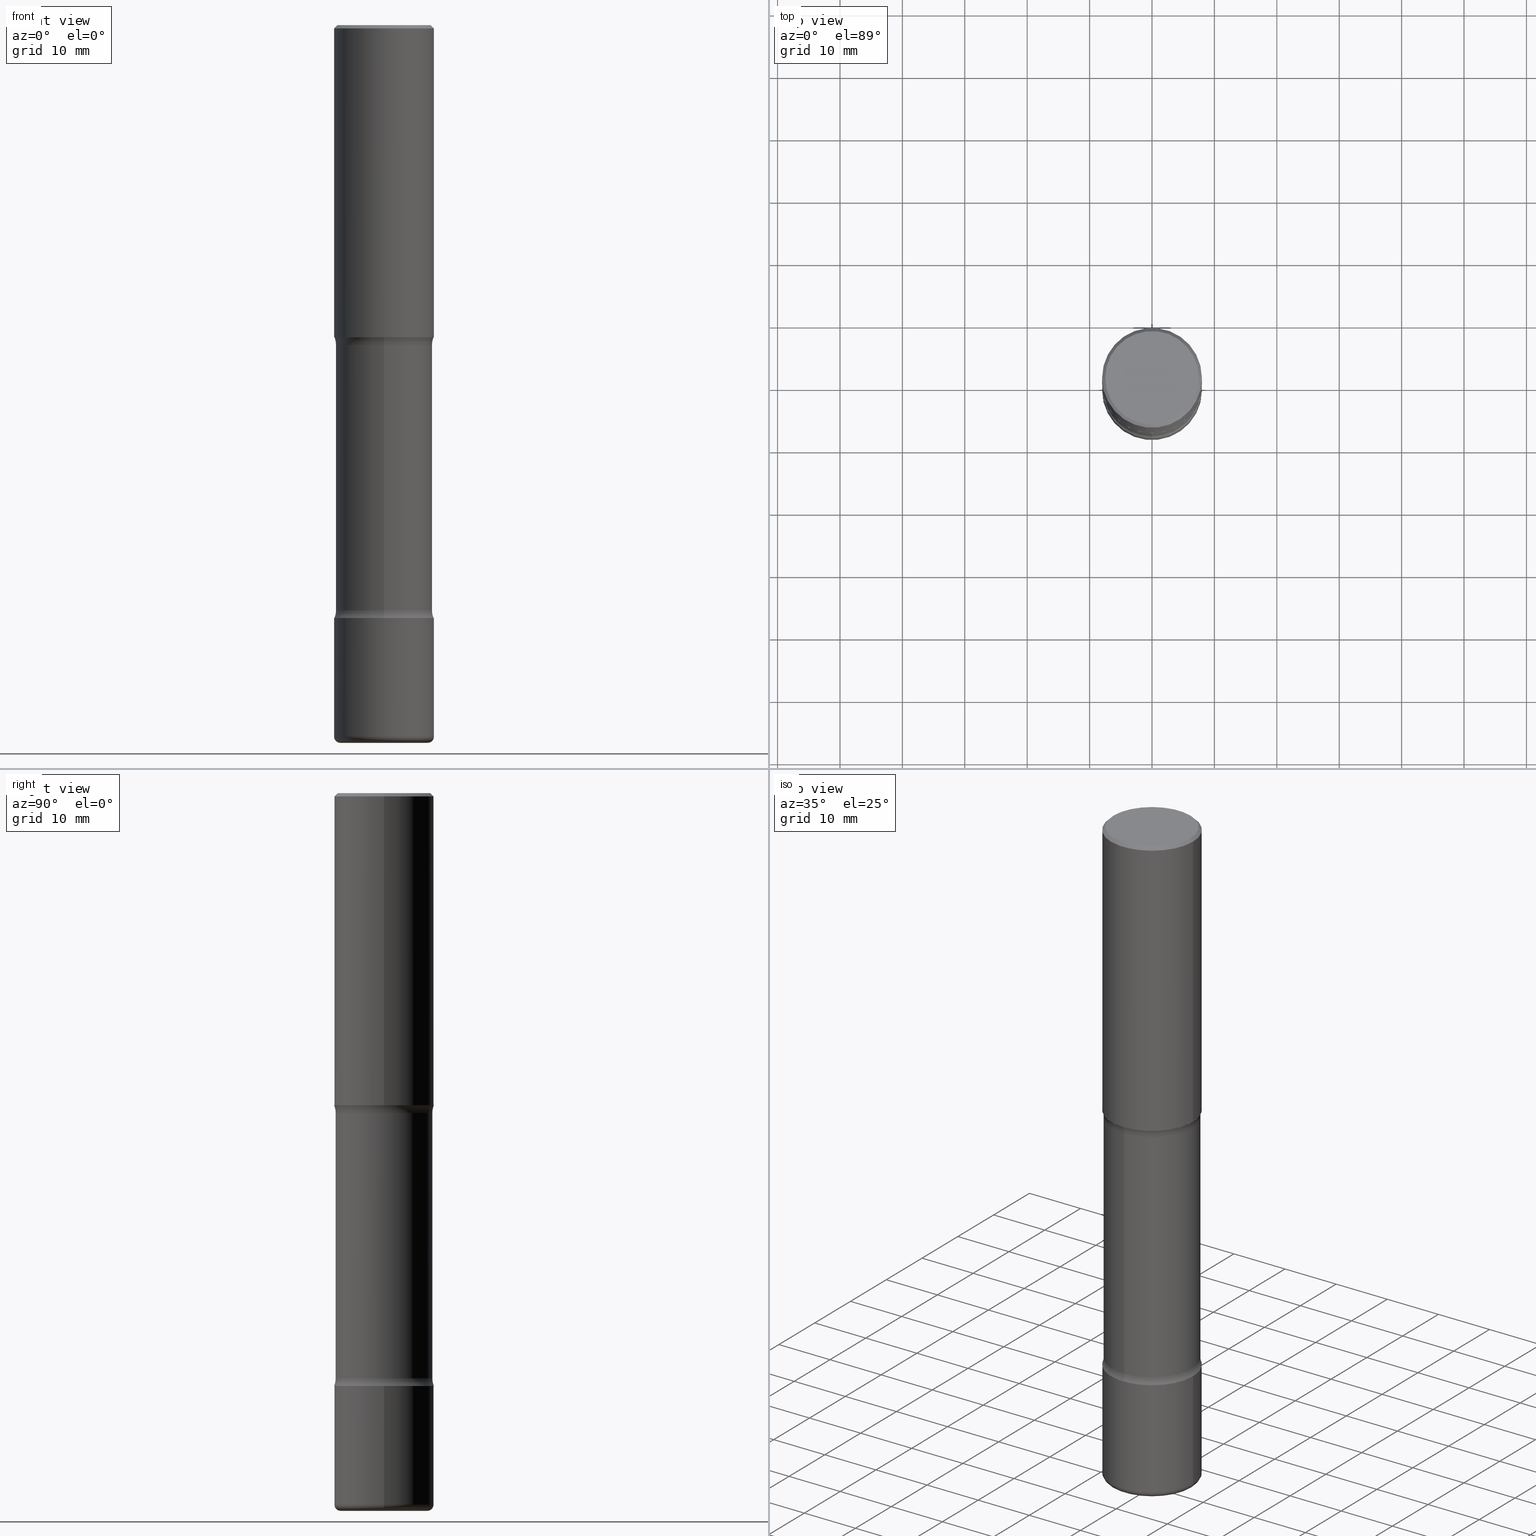
[diagram: canonical four-view strip — front | top / right | iso, engineering-drawing reading convention]
A machine part, canonical four-view strip (front | top / right | iso — engineering-drawing reading convention). The complete STEP part file that produces these views, byte-faithful:
ISO-10303-21;
HEADER;
FILE_DESCRIPTION (( 'STEP AP203' ),
    '1' );
FILE_NAME ('46932.STEP',
    '2024-03-02T05:57:35',
    ( '' ),
    ( '' ),
    'SwSTEP 2.0',
    'SolidWorks 2023',
    '' );
FILE_SCHEMA (( 'CONFIG_CONTROL_DESIGN' ));
ENDSEC;

DATA;
#1 = CARTESIAN_POINT ( 'NONE',  ( -0.2949499999999998789, 2.094539655171994924E-15, 1.280553747028672311E-17 ) ) ;
#2 = CARTESIAN_POINT ( 'NONE',  ( 4.698043529530127941E-29, -7.038901729675425288E-15, -1.968500000000000139 ) ) ;
#3 = VECTOR ( 'NONE', #293, 39.37007874015748143 ) ;
#4 = EDGE_CURVE ( 'NONE', #514, #277, #250, .T. ) ;
#5 = TOROIDAL_SURFACE ( 'NONE', #318, 0.4299999999999999378, 0.1249999999999999861 ) ;
#6 = APPROVAL_ROLE ( '' ) ;
#7 = DIRECTION ( 'NONE',  ( -2.445468806185136877E-29, 3.491481338843145188E-15, 1.000000000000000000 ) ) ;
#8 = APPROVAL ( #443, 'UNSPECIFIED' ) ;
#9 = DIRECTION ( 'NONE',  ( 6.982962677686265922E-15, 1.000000000000000000, -3.397830769241806549E-15 ) ) ;
#10 = CALENDAR_DATE ( 2024, 2, 3 ) ;
#11 = DIRECTION ( 'NONE',  ( -0.7071067811865459074, 2.468850131082240100E-15, -0.7071067811865491270 ) ) ;
#12 = CARTESIAN_POINT ( 'NONE',  ( -2.126582866859139470E-15, -0.3050000000000128719, -3.691327743043725906 ) ) ;
#13 = CIRCLE ( 'NONE', #97, 0.1249999999999999584 ) ;
#14 = VERTEX_POINT ( 'NONE', #338 ) ;
#15 = DATE_AND_TIME ( #446, #252 ) ;
#16 = DIRECTION ( 'NONE',  ( -1.000000000000000000, 6.982962677686265922E-15, 0.000000000000000000 ) ) ;
#17 = ORIENTED_EDGE ( 'NONE', *, *, #515, .F. ) ;
#18 = CARTESIAN_POINT ( 'NONE',  ( 9.146542428893648262E-29, -1.305883850354113437E-14, -3.740200000000000191 ) ) ;
#19 = EDGE_LOOP ( 'NONE', ( #226, #65, #512, #508 ) ) ;
#20 = DIRECTION ( 'NONE',  ( 2.438088387897960049E-29, -3.491481338843145188E-15, -1.000000000000000000 ) ) ;
#21 = EDGE_CURVE ( 'NONE', #14, #241, #377, .T. ) ;
#22 = VERTEX_POINT ( 'NONE', #235 ) ;
#23 = AXIS2_PLACEMENT_3D ( 'NONE', #36, #115, #40 ) ;
#24 = LOCAL_TIME ( 0, 57, 35.00000000000000000, #92 ) ;
#25 = DIRECTION ( 'NONE',  ( 6.982962677686264344E-15, 1.000000000000000000, -3.469564049740290403E-15 ) ) ;
#26 = ORIENTED_EDGE ( 'NONE', *, *, #263, .F. ) ;
#27 = FACE_OUTER_BOUND ( 'NONE', #232, .T. ) ;
#28 = PRODUCT_DEFINITION_SHAPE ( 'NONE', 'NONE',  #90 ) ;
#29 = ORIENTED_EDGE ( 'NONE', *, *, #234, .F. ) ;
#30 = ADVANCED_FACE ( 'NONE', ( #245 ), #106, .T. ) ;
#31 = ORIENTED_EDGE ( 'NONE', *, *, #481, .T. ) ;
#32 = AXIS2_PLACEMENT_3D ( 'NONE', #187, #198, #189 ) ;
#33 = PLANE ( 'NONE',  #96 ) ;
#34 = CC_DESIGN_APPROVAL ( #8, ( #90 ) ) ;
#35 = ORIENTED_EDGE ( 'NONE', *, *, #343, .T. ) ;
#36 = CARTESIAN_POINT ( 'NONE',  ( 1.097575309592013175E-28, -1.567046654499580783E-14, -4.488200000000000855 ) ) ;
#37 = VERTEX_POINT ( 'NONE', #332 ) ;
#38 = DIRECTION ( 'NONE',  ( 6.982962677686264344E-15, 1.000000000000000000, -3.469564049740290403E-15 ) ) ;
#39 = ORIENTED_EDGE ( 'NONE', *, *, #481, .F. ) ;
#40 = DIRECTION ( 'NONE',  ( 1.000000000000000000, -6.982962677686265922E-15, 0.000000000000000000 ) ) ;
#41 = AXIS2_PLACEMENT_3D ( 'NONE', #309, #453, #222 ) ;
#42 = DIRECTION ( 'NONE',  ( 1.000000000000000000, -6.982962677686265133E-15, 4.883557194083112340E-29 ) ) ;
#43 = APPROVAL_PERSON_ORGANIZATION ( #213, #204, #403 ) ;
#44 = CARTESIAN_POINT ( 'NONE',  ( 0.3149499999999998967, -2.230543471175006266E-15, -0.02000000000000006981 ) ) ;
#45 = PERSON_AND_ORGANIZATION ( #285, #300 ) ;
#46 = CARTESIAN_POINT ( 'NONE',  ( 2.199284095337382168E-15, 0.3149499999999871291, -3.740200000000001079 ) ) ;
#47 = DIRECTION ( 'NONE',  ( 1.000000000000000000, -6.982962677686266711E-15, 4.876176775795936353E-29 ) ) ;
#48 = PERSON_AND_ORGANIZATION ( #285, #300 ) ;
#49 = CYLINDRICAL_SURFACE ( 'NONE', #67, 0.3049999999999999378 ) ;
#50 = AXIS2_PLACEMENT_3D ( 'NONE', #370, #104, #547 ) ;
#51 = CARTESIAN_POINT ( 'NONE',  ( -0.2755500000000001837, -1.371256603660884731E-14, -4.488199999999999967 ) ) ;
#52 = PERSON_AND_ORGANIZATION_ROLE ( 'classification_officer' ) ;
#53 = CARTESIAN_POINT ( 'NONE',  ( 0.000000000000000000, 0.000000000000000000, 0.000000000000000000 ) ) ;
#54 = EDGE_CURVE ( 'NONE', #181, #543, #111, .T. ) ;
#55 = PERSON_AND_ORGANIZATION ( #285, #300 ) ;
#56 = DIRECTION ( 'NONE',  ( 0.7071067811865459074, -7.319954787623249734E-15, -0.7071067811865491270 ) ) ;
#57 = ORIENTED_EDGE ( 'NONE', *, *, #441, .T. ) ;
#58 = APPROVAL_STATUS ( 'not_yet_approved' ) ;
#59 = FACE_OUTER_BOUND ( 'NONE', #330, .T. ) ;
#60 = AXIS2_PLACEMENT_3D ( 'NONE', #85, #483, #9 ) ;
#61 = ORIENTED_EDGE ( 'NONE', *, *, #4, .F. ) ;
#62 = CARTESIAN_POINT ( 'NONE',  ( -0.3149499999999998967, 2.129454468560425784E-15, -0.02000000000000006981 ) ) ;
#63 = EDGE_LOOP ( 'NONE', ( #228, #557 ) ) ;
#64 = CARTESIAN_POINT ( 'NONE',  ( 4.813905344975441835E-29, -6.872981015512731707E-15, -1.968500000000000139 ) ) ;
#65 = ORIENTED_EDGE ( 'NONE', *, *, #525, .T. ) ;
#66 = PLANE ( 'NONE',  #251 ) ;
#67 = AXIS2_PLACEMENT_3D ( 'NONE', #302, #480, #254 ) ;
#68 = AXIS2_PLACEMENT_3D ( 'NONE', #53, #144, #150 ) ;
#69 = ORIENTED_EDGE ( 'NONE', *, *, #554, .T. ) ;
#70 = AXIS2_PLACEMENT_3D ( 'NONE', #2, #430, #342 ) ;
#71 = DIRECTION ( 'NONE',  ( 6.982962677686265922E-15, 1.000000000000000000, -3.397830769241806549E-15 ) ) ;
#72 = ORIENTED_EDGE ( 'NONE', *, *, #335, .T. ) ;
#73 = FACE_OUTER_BOUND ( 'NONE', #63, .T. ) ;
#74 = ORIENTED_EDGE ( 'NONE', *, *, #148, .F. ) ;
#75 = DIRECTION ( 'NONE',  ( -6.982962677686266711E-15, -1.000000000000000000, 3.491481338843145583E-15 ) ) ;
#76 = ORIENTED_EDGE ( 'NONE', *, *, #247, .T. ) ;
#77 = CIRCLE ( 'NONE', #506, 0.2949499999999998789 ) ;
#78 = EDGE_CURVE ( 'NONE', #456, #191, #401, .T. ) ;
#79 = ORIENTED_EDGE ( 'NONE', *, *, #84, .F. ) ;
#80 = VERTEX_POINT ( 'NONE', #44 ) ;
#81 = CARTESIAN_POINT ( 'NONE',  ( 9.146542428893648262E-29, -1.305883850354113437E-14, -3.740200000000000191 ) ) ;
#82 = PLANE ( 'NONE',  #114 ) ;
#83 = CIRCLE ( 'NONE', #376, 0.03939999999999975466 ) ;
#84 = EDGE_CURVE ( 'NONE', #514, #191, #520, .T. ) ;
#85 = CARTESIAN_POINT ( 'NONE',  ( 9.027026849019217051E-29, -1.288820193039115935E-14, -3.691327743043726795 ) ) ;
#86 = PERSON_AND_ORGANIZATION ( #285, #300 ) ;
#87 = CARTESIAN_POINT ( 'NONE',  ( 4.890937612370289799E-31, -6.982962677686315028E-17, -0.02000000000000006981 ) ) ;
#88 = CLOSED_SHELL ( 'NONE', ( #160, #311, #207, #477, #475, #534 ) ) ;
#89 = VECTOR ( 'NONE', #11, 39.37007874015748143 ) ;
#90 = PRODUCT_DEFINITION ( 'UNKNOWN', '', #498, #419 ) ;
#91 = FACE_OUTER_BOUND ( 'NONE', #188, .T. ) ;
#92 = COORDINATED_UNIVERSAL_TIME_OFFSET ( 5, 0, .BEHIND. ) ;
#93 = DIRECTION ( 'NONE',  ( -1.000000000000000000, 6.982962677686265922E-15, -4.876176775795935793E-29 ) ) ;
#94 = CALENDAR_DATE ( 2024, 2, 3 ) ;
#95 = DIRECTION ( 'NONE',  ( -2.445468806185136597E-29, 3.491481338843145583E-15, 1.000000000000000000 ) ) ;
#96 = AXIS2_PLACEMENT_3D ( 'NONE', #142, #556, #373 ) ;
#97 = AXIS2_PLACEMENT_3D ( 'NONE', #523, #516, #336 ) ;
#98 = ORIENTED_EDGE ( 'NONE', *, *, #263, .T. ) ;
#99 = CARTESIAN_POINT ( 'NONE',  ( 4.698043529530127941E-29, -7.038901729675425288E-15, -1.968500000000000139 ) ) ;
#100 = ADVANCED_FACE ( 'NONE', ( #397 ), #154, .F. ) ;
#101 = EDGE_LOOP ( 'NONE', ( #313, #417 ) ) ;
#102 = CARTESIAN_POINT ( 'NONE',  ( -2.092451889320205392E-15, -0.3050000000000157030, -4.527599999999998737 ) ) ;
#103 = ORIENTED_EDGE ( 'NONE', *, *, #492, .T. ) ;
#104 = DIRECTION ( 'NONE',  ( 2.510864649412157880E-29, -3.397830769241806549E-15, -1.000000000000000000 ) ) ;
#105 = AXIS2_PLACEMENT_3D ( 'NONE', #170, #485, #93 ) ;
#106 = CYLINDRICAL_SURFACE ( 'NONE', #268, 0.3049999999999999378 ) ;
#107 = CC_DESIGN_APPROVAL ( #204, ( #394 ) ) ;
#108 = DIRECTION ( 'NONE',  ( 2.510864649412157600E-29, -3.397830769241806549E-15, -1.000000000000000000 ) ) ;
#109 = ORIENTED_EDGE ( 'NONE', *, *, #379, .F. ) ;
#110 = DIRECTION ( 'NONE',  ( -2.445468806185136877E-29, 3.491481338843145188E-15, 1.000000000000000000 ) ) ;
#111 = LINE ( 'NONE', #380, #412 ) ;
#112 = PLANE ( 'NONE',  #393 ) ;
#113 = DIRECTION ( 'NONE',  ( 2.510864649412157600E-29, -3.397830769241806549E-15, -1.000000000000000000 ) ) ;
#114 = AXIS2_PLACEMENT_3D ( 'NONE', #81, #249, #253 ) ;
#115 = DIRECTION ( 'NONE',  ( -2.445468806185136597E-29, 3.491481338843145583E-15, 1.000000000000000000 ) ) ;
#116 = ORIENTED_EDGE ( 'NONE', *, *, #424, .T. ) ;
#117 =( LENGTH_UNIT ( ) NAMED_UNIT ( * ) SI_UNIT ( $, .METRE. ) );
#118 = DIRECTION ( 'NONE',  ( 1.000000000000000000, -6.982962677686265922E-15, 0.000000000000000000 ) ) ;
#119 = DIRECTION ( 'NONE',  ( 1.000000000000000000, -6.982962677686269866E-15, 0.000000000000000000 ) ) ;
#120 = EDGE_CURVE ( 'NONE', #290, #543, #239, .T. ) ;
#121 = CARTESIAN_POINT ( 'NONE',  ( -0.2755500000000001282, -1.364137130003931840E-14, -4.527599999999999625 ) ) ;
#122 = AXIS2_PLACEMENT_3D ( 'NONE', #527, #444, #354 ) ;
#123 = CALENDAR_DATE ( 2024, 2, 3 ) ;
#124 = CARTESIAN_POINT ( 'NONE',  ( -2.160713844398098792E-15, -0.3149500000000073907, -1.968499999999999028 ) ) ;
#125 = TOROIDAL_SURFACE ( 'NONE', #425, 0.2755500000000001837, 0.03939999999999977548 ) ;
#126 = DIRECTION ( 'NONE',  ( 2.445468806185136597E-29, -3.491481338843145583E-15, -1.000000000000000000 ) ) ;
#127 = AXIS2_PLACEMENT_3D ( 'NONE', #99, #357, #348 ) ;
#128 = ORIENTED_EDGE ( 'NONE', *, *, #21, .T. ) ;
#129 = CARTESIAN_POINT ( 'NONE',  ( 0.000000000000000000, 0.000000000000000000, 0.000000000000000000 ) ) ;
#130 = ORIENTED_EDGE ( 'NONE', *, *, #234, .T. ) ;
#131 = SECURITY_CLASSIFICATION_LEVEL ( 'unclassified' ) ;
#132 = LINE ( 'NONE', #530, #89 ) ;
#133 = ADVANCED_FACE ( 'NONE', ( #470 ), #541, .T. ) ;
#134 = ORIENTED_EDGE ( 'NONE', *, *, #84, .T. ) ;
#135 = LINE ( 'NONE', #398, #270 ) ;
#136 = CONICAL_SURFACE ( 'NONE', #195, 0.3149499999999998967, 0.7853981633974460586 ) ;
#137 = ORIENTED_EDGE ( 'NONE', *, *, #492, .F. ) ;
#138 = CARTESIAN_POINT ( 'NONE',  ( 9.146542428893648262E-29, -1.305883850354113437E-14, -3.740200000000000191 ) ) ;
#139 = MANIFOLD_SOLID_BREP ( 'Body-Move/Copy2[4]', #351 ) ;
#140 = ORIENTED_EDGE ( 'NONE', *, *, #436, .F. ) ;
#141 = ADVANCED_FACE ( 'NONE', ( #206 ), #49, .T. ) ;
#142 = CARTESIAN_POINT ( 'NONE',  ( 4.813905344975441835E-29, -6.872981015512731707E-15, -1.968500000000000139 ) ) ;
#143 = VERTEX_POINT ( 'NONE', #296 ) ;
#144 = DIRECTION ( 'NONE',  ( -2.445468806185136597E-29, 3.491481338843145583E-15, 1.000000000000000000 ) ) ;
#145 = AXIS2_PLACEMENT_3D ( 'NONE', #540, #396, #218 ) ;
#146 = ORIENTED_EDGE ( 'NONE', *, *, #202, .F. ) ;
#147 = FACE_OUTER_BOUND ( 'NONE', #281, .T. ) ;
#148 = EDGE_CURVE ( 'NONE', #191, #472, #304, .T. ) ;
#149 = DIRECTION ( 'NONE',  ( 2.510864649412157880E-29, -3.397830769241806549E-15, -1.000000000000000000 ) ) ;
#150 = DIRECTION ( 'NONE',  ( 1.000000000000000000, -6.982962677686265922E-15, 4.876176775795935232E-29 ) ) ;
#151 = ADVANCED_FACE ( 'NONE', ( #474 ), #125, .T. ) ;
#152 = EDGE_LOOP ( 'NONE', ( #35, #496 ) ) ;
#153 = CYLINDRICAL_SURFACE ( 'NONE', #271, 0.3149500000000000077 ) ;
#154 = TOROIDAL_SURFACE ( 'NONE', #60, 0.4300000000000000488, 0.1249999999999999861 ) ;
#155 = DIRECTION ( 'NONE',  ( -2.445468806185136597E-29, 3.491481338843145583E-15, 1.000000000000000000 ) ) ;
#156 = AXIS2_PLACEMENT_3D ( 'NONE', #266, #490, #216 ) ;
#157 = CIRCLE ( 'NONE', #366, 0.3149500000000002298 ) ;
#158 =( NAMED_UNIT ( * ) SI_UNIT ( $, .STERADIAN. ) SOLID_ANGLE_UNIT ( ) );
#159 = DIRECTION ( 'NONE',  ( 1.000000000000000000, 0.000000000000000000, 0.000000000000000000 ) ) ;
#160 = ADVANCED_FACE ( 'NONE', ( #298 ), #256, .T. ) ;
#161 = DIRECTION ( 'NONE',  ( -1.000000000000000000, 6.982962677686265922E-15, -4.876176775795935793E-29 ) ) ;
#162 = CARTESIAN_POINT ( 'NONE',  ( 9.146542428893648262E-29, -1.305883850354113437E-14, -3.740200000000000191 ) ) ;
#163 = CC_DESIGN_PERSON_AND_ORGANIZATION_ASSIGNMENT ( #45, #211, ( #183 ) ) ;
#164 = CARTESIAN_POINT ( 'NONE',  ( 9.023830806565153848E-29, -1.289277884509281722E-14, -3.691327743043726795 ) ) ;
#165 = APPLICATION_PROTOCOL_DEFINITION ( 'international standard', 'config_control_design', 1994, #517 ) ;
#166 = CIRCLE ( 'NONE', #145, 0.2949499999999998789 ) ;
#167 = LOCAL_TIME ( 0, 57, 35.00000000000000000, #360 ) ;
#168 = EDGE_CURVE ( 'NONE', #22, #14, #240, .T. ) ;
#169 = COORDINATED_UNIVERSAL_TIME_OFFSET ( 5, 0, .BEHIND. ) ;
#170 = CARTESIAN_POINT ( 'NONE',  ( 9.146542428893648262E-29, -1.305883850354113437E-14, -3.740200000000000191 ) ) ;
#171 = DATE_TIME_ROLE ( 'creation_date' ) ;
#172 = CARTESIAN_POINT ( 'NONE',  ( 4.838038961945526264E-29, -7.180209988345923531E-15, -2.017372256956273979 ) ) ;
#173 = DATE_AND_TIME ( #94, #167 ) ;
#174 = FACE_OUTER_BOUND ( 'NONE', #407, .T. ) ;
#175 = CIRCLE ( 'NONE', #156, 0.3149499999999998967 ) ;
#176 = ORIENTED_EDGE ( 'NONE', *, *, #54, .T. ) ;
#177 = FACE_OUTER_BOUND ( 'NONE', #422, .T. ) ;
#178 = EDGE_CURVE ( 'NONE', #559, #241, #132, .T. ) ;
#179 = ORIENTED_EDGE ( 'NONE', *, *, #120, .F. ) ;
#180 = FACE_OUTER_BOUND ( 'NONE', #463, .T. ) ;
#181 = VERTEX_POINT ( 'NONE', #455 ) ;
#182 = DIRECTION ( 'NONE',  ( -1.000000000000000000, 6.982962677686265922E-15, -4.876176775795935793E-29 ) ) ;
#183 = PRODUCT ( '46932', '46932', '', ( #340 ) ) ;
#184 = CIRCLE ( 'NONE', #531, 0.3149500000000001743 ) ;
#185 = ADVANCED_FACE ( 'NONE', ( #269 ), #5, .F. ) ;
#186 = EDGE_LOOP ( 'NONE', ( #17, #69, #319, #272 ) ) ;
#187 = CARTESIAN_POINT ( 'NONE',  ( 1.107210456688382298E-28, -1.580803090974622389E-14, -4.527599999999999625 ) ) ;
#188 = EDGE_LOOP ( 'NONE', ( #371, #267, #381, #98 ) ) ;
#189 = DIRECTION ( 'NONE',  ( 1.000000000000000000, -6.982962677686273021E-15, 0.000000000000000000 ) ) ;
#190 = APPROVAL ( #482, 'UNSPECIFIED' ) ;
#191 = VERTEX_POINT ( 'NONE', #350 ) ;
#192 = CARTESIAN_POINT ( 'NONE',  ( 0.3149500000000002298, -1.525812259887842581E-14, -3.740200000000000191 ) ) ;
#193 = DIRECTION ( 'NONE',  ( 6.982962677686266711E-15, 1.000000000000000000, -3.582751467100674095E-15 ) ) ;
#194 = AXIS2_PLACEMENT_3D ( 'NONE', #164, #538, #193 ) ;
#195 = AXIS2_PLACEMENT_3D ( 'NONE', #87, #406, #16 ) ;
#196 = DIRECTION ( 'NONE',  ( 1.000000000000000000, -6.982962677686273021E-15, 0.000000000000000000 ) ) ;
#197 = CIRCLE ( 'NONE', #70, 0.3149500000000003408 ) ;
#198 = DIRECTION ( 'NONE',  ( -2.445468806185136597E-29, 3.491481338843145583E-15, 1.000000000000000000 ) ) ;
#199 = EDGE_CURVE ( 'NONE', #203, #287, #478, .T. ) ;
#200 = DIRECTION ( 'NONE',  ( 6.982962677686266711E-15, 1.000000000000000000, -3.582751467100674095E-15 ) ) ;
#201 = DIRECTION ( 'NONE',  ( -2.445468806185136597E-29, 3.491481338843145583E-15, 1.000000000000000000 ) ) ;
#202 = EDGE_CURVE ( 'NONE', #543, #290, #299, .T. ) ;
#203 = VERTEX_POINT ( 'NONE', #124 ) ;
#204 = APPROVAL ( #58, 'UNSPECIFIED' ) ;
#205 = FACE_OUTER_BOUND ( 'NONE', #427, .T. ) ;
#206 = FACE_OUTER_BOUND ( 'NONE', #411, .T. ) ;
#207 = ADVANCED_FACE ( 'NONE', ( #91 ), #452, .T. ) ;
#208 = AXIS2_PLACEMENT_3D ( 'NONE', #507, #410, #320 ) ;
#209 = CARTESIAN_POINT ( 'NONE',  ( -2.950014139041709158E-15, -0.4300000000000070988, -2.017372256956272647 ) ) ;
#210 = CARTESIAN_POINT ( 'NONE',  ( -0.3149500000000001743, 2.237854346276436774E-15, -1.549218606675783237E-29 ) ) ;
#211 = PERSON_AND_ORGANIZATION_ROLE ( 'design_owner' ) ;
#212 = LENGTH_MEASURE_WITH_UNIT ( LENGTH_MEASURE( 0.02539999999999999897 ), #117 );
#213 = PERSON_AND_ORGANIZATION ( #285, #300 ) ;
#214 = CIRCLE ( 'NONE', #544, 0.3149500000000002298 ) ;
#215 = APPROVAL_DATE_TIME ( #314, #204 ) ;
#216 = DIRECTION ( 'NONE',  ( 1.000000000000000000, -6.982962677686265922E-15, 0.000000000000000000 ) ) ;
#217 = APPROVAL_DATE_TIME ( #494, #190 ) ;
#218 = DIRECTION ( 'NONE',  ( 1.000000000000000000, -6.982962677686267499E-15, 4.876053491004736589E-29 ) ) ;
#219 = EDGE_CURVE ( 'NONE', #80, #241, #467, .T. ) ;
#220 = SHAPE_DEFINITION_REPRESENTATION ( #28, #361 ) ;
#221 = AXIS2_PLACEMENT_3D ( 'NONE', #51, #518, #479 ) ;
#222 = DIRECTION ( 'NONE',  ( 6.982962677686266711E-15, 1.000000000000000000, -3.582751467100673306E-15 ) ) ;
#223 = AXIS2_PLACEMENT_3D ( 'NONE', #509, #227, #71 ) ;
#224 = ORIENTED_EDGE ( 'NONE', *, *, #168, .T. ) ;
#225 = DIRECTION ( 'NONE',  ( 6.982962677686265922E-15, 1.000000000000000000, -3.397830769241806549E-15 ) ) ;
#226 = ORIENTED_EDGE ( 'NONE', *, *, #466, .F. ) ;
#227 = DIRECTION ( 'NONE',  ( 2.510864649412157880E-29, -3.397830769241806549E-15, -1.000000000000000000 ) ) ;
#228 = ORIENTED_EDGE ( 'NONE', *, *, #522, .F. ) ;
#229 = DIRECTION ( 'NONE',  ( 1.000000000000000000, -6.982962677686273021E-15, 0.000000000000000000 ) ) ;
#230 = AXIS2_PLACEMENT_3D ( 'NONE', #362, #95, #537 ) ;
#231 = AXIS2_PLACEMENT_3D ( 'NONE', #162, #428, #38 ) ;
#232 = EDGE_LOOP ( 'NONE', ( #454, #140, #72, #502 ) ) ;
#233 = FACE_OUTER_BOUND ( 'NONE', #101, .T. ) ;
#234 = EDGE_CURVE ( 'NONE', #181, #143, #308, .T. ) ;
#235 = CARTESIAN_POINT ( 'NONE',  ( 0.3149500000000001743, -9.072265110850023156E-15, -1.968500000000000139 ) ) ;
#236 = DIRECTION ( 'NONE',  ( 1.000000000000000000, -6.982962677686265133E-15, 4.883557194083112340E-29 ) ) ;
#237 = ORIENTED_EDGE ( 'NONE', *, *, #219, .T. ) ;
#238 = CARTESIAN_POINT ( 'NONE',  ( 0.3149500000000000077, -1.786975064033309928E-14, -4.488200000000000855 ) ) ;
#239 = CIRCLE ( 'NONE', #194, 0.3049999999999999378 ) ;
#240 = CIRCLE ( 'NONE', #384, 0.3149500000000001743 ) ;
#241 = VERTEX_POINT ( 'NONE', #62 ) ;
#242 = APPROVAL_PERSON_ORGANIZATION ( #86, #190, #6 ) ;
#243 = APPLICATION_PROTOCOL_DEFINITION ( 'international standard', 'config_control_design', 1994, #445 ) ;
#244 = CC_DESIGN_PERSON_AND_ORGANIZATION_ASSIGNMENT ( #399, #52, ( #394 ) ) ;
#245 = FACE_OUTER_BOUND ( 'NONE', #364, .T. ) ;
#246 = DIRECTION ( 'NONE',  ( 1.000000000000000000, -6.860497997771530774E-15, 4.841945768327149582E-29 ) ) ;
#247 = EDGE_CURVE ( 'NONE', #472, #368, #214, .T. ) ;
#248 = ORIENTED_EDGE ( 'NONE', *, *, #389, .T. ) ;
#249 = DIRECTION ( 'NONE',  ( -2.510864649412157319E-29, 3.397830769241806549E-15, 1.000000000000000000 ) ) ;
#250 = CIRCLE ( 'NONE', #325, 0.2755500000000001282 ) ;
#251 = AXIS2_PLACEMENT_3D ( 'NONE', #64, #545, #278 ) ;
#252 = LOCAL_TIME ( 0, 57, 35.00000000000000000, #526 ) ;
#253 = DIRECTION ( 'NONE',  ( -6.982962677686265922E-15, -1.000000000000000000, 3.397830769241806549E-15 ) ) ;
#254 = DIRECTION ( 'NONE',  ( 6.982962677686266711E-15, 1.000000000000000000, -3.582751467100674095E-15 ) ) ;
#255 = ADVANCED_FACE ( 'NONE', ( #180 ), #262, .T. ) ;
#256 = CYLINDRICAL_SURFACE ( 'NONE', #486, 0.3149500000000000077 ) ;
#257 = EDGE_CURVE ( 'NONE', #37, #559, #166, .T. ) ;
#258 = CC_DESIGN_PERSON_AND_ORGANIZATION_ASSIGNMENT ( #395, #265, ( #90 ) ) ;
#259 = VECTOR ( 'NONE', #108, 39.37007874015748143 ) ;
#260 = CYLINDRICAL_SURFACE ( 'NONE', #68, 0.3149500000000001743 ) ;
#261 = PERSON_AND_ORGANIZATION_ROLE ( 'creator' ) ;
#262 = CYLINDRICAL_SURFACE ( 'NONE', #426, 0.3149500000000001743 ) ;
#263 = EDGE_CURVE ( 'NONE', #241, #80, #175, .T. ) ;
#264 = ORIENTED_EDGE ( 'NONE', *, *, #4, .T. ) ;
#265 = PERSON_AND_ORGANIZATION_ROLE ( 'creator' ) ;
#266 = CARTESIAN_POINT ( 'NONE',  ( 4.890937612370289799E-31, -6.982962677686315028E-17, -0.02000000000000006981 ) ) ;
#267 = ORIENTED_EDGE ( 'NONE', *, *, #343, .F. ) ;
#268 = AXIS2_PLACEMENT_3D ( 'NONE', #420, #149, #200 ) ;
#269 = FACE_OUTER_BOUND ( 'NONE', #555, .T. ) ;
#270 = VECTOR ( 'NONE', #7, 39.37007874015748143 ) ;
#271 = AXIS2_PLACEMENT_3D ( 'NONE', #301, #201, #386 ) ;
#272 = ORIENTED_EDGE ( 'NONE', *, *, #335, .F. ) ;
#273 = EDGE_CURVE ( 'NONE', #456, #368, #135, .T. ) ;
#274 = PLANE ( 'NONE',  #105 ) ;
#275 = VERTEX_POINT ( 'NONE', #317 ) ;
#276 = FACE_OUTER_BOUND ( 'NONE', #409, .T. ) ;
#277 = VERTEX_POINT ( 'NONE', #312 ) ;
#278 = DIRECTION ( 'NONE',  ( 6.982962677686265922E-15, 1.000000000000000000, -3.397830769241806549E-15 ) ) ;
#279 = UNCERTAINTY_MEASURE_WITH_UNIT (LENGTH_MEASURE( 1.000000000000000082E-05 ), #297, 'distance_accuracy_value', 'NONE');
#280 = AXIS2_PLACEMENT_3D ( 'NONE', #421, #323, #236 ) ;
#281 = EDGE_LOOP ( 'NONE', ( #493, #546 ) ) ;
#282 = DIRECTION ( 'NONE',  ( 1.000000000000000000, -6.982962677686269866E-15, 0.000000000000000000 ) ) ;
#283 = EDGE_CURVE ( 'NONE', #37, #80, #450, .T. ) ;
#284 = ORIENTED_EDGE ( 'NONE', *, *, #78, .T. ) ;
#285 = PERSON ( 'UNSPECIFIED', 'UNSPECIFIED', 'UNSPECIFIED', ('UNSPECIFIED'), ('UNSPECIFIED'), ('UNSPECIFIED') ) ;
#286 = CARTESIAN_POINT ( 'NONE',  ( 3.002673951405185326E-15, 0.4299999999999871703, -3.691327743043728571 ) ) ;
#287 = VERTEX_POINT ( 'NONE', #400 ) ;
#288 = CARTESIAN_POINT ( 'NONE',  ( 2.059624841783563274E-15, 0.2949499999999998789, -1.023409652156634744E-15 ) ) ;
#289 = AXIS2_PLACEMENT_3D ( 'NONE', #286, #549, #418 ) ;
#290 = VERTEX_POINT ( 'NONE', #12 ) ;
#291 = TOROIDAL_SURFACE ( 'NONE', #468, 0.4299999999999999378, 0.1249999999999999861 ) ;
#292 = CARTESIAN_POINT ( 'NONE',  ( 2.129803616694401198E-15, 0.3049999999999870592, -3.691327743043728127 ) ) ;
#293 = DIRECTION ( 'NONE',  ( -2.445468806185136877E-29, 3.491481338843145188E-15, 1.000000000000000000 ) ) ;
#294 = CARTESIAN_POINT ( 'NONE',  ( 0.000000000000000000, 0.000000000000000000, 0.000000000000000000 ) ) ;
#295 = CC_DESIGN_DATE_AND_TIME_ASSIGNMENT ( #173, #171, ( #90 ) ) ;
#296 = CARTESIAN_POINT ( 'NONE',  ( -2.126582866859183647E-15, -0.3050000000000072098, -2.017372256956272647 ) ) ;
#297 =( CONVERSION_BASED_UNIT ( 'INCH', #212 ) LENGTH_UNIT ( ) NAMED_UNIT ( #327 ) );
#298 = FACE_OUTER_BOUND ( 'NONE', #448, .T. ) ;
#299 = CIRCLE ( 'NONE', #122, 0.3049999999999999378 ) ;
#300 = ORGANIZATION ( 'UNSPECIFIED', 'UNSPECIFIED', '' ) ;
#301 = CARTESIAN_POINT ( 'NONE',  ( 0.000000000000000000, 0.000000000000000000, 0.000000000000000000 ) ) ;
#302 = CARTESIAN_POINT ( 'NONE',  ( 1.112359725384078225E-28, -1.573429045124212958E-14, -4.527600000000000513 ) ) ;
#303 = ADVANCED_FACE ( 'NONE', ( #174 ), #274, .F. ) ;
#304 = LINE ( 'NONE', #210, #383 ) ;
#305 = DIRECTION ( 'NONE',  ( 1.000000000000000000, -6.982962677686265922E-15, 4.876176775795935232E-29 ) ) ;
#306 = CC_DESIGN_PERSON_AND_ORGANIZATION_ASSIGNMENT ( #48, #449, ( #498 ) ) ;
#307 = AXIS2_PLACEMENT_3D ( 'NONE', #504, #390, #161 ) ;
#308 = CIRCLE ( 'NONE', #41, 0.3049999999999999933 ) ;
#309 = CARTESIAN_POINT ( 'NONE',  ( 4.820755151858623476E-29, -7.204961388123744804E-15, -2.017372256956273979 ) ) ;
#310 = ORIENTED_EDGE ( 'NONE', *, *, #458, .F. ) ;
#311 = ADVANCED_FACE ( 'NONE', ( #59 ), #136, .T. ) ;
#312 = CARTESIAN_POINT ( 'NONE',  ( 0.2755500000000001282, -1.773218627558267691E-14, -4.527599999999999625 ) ) ;
#313 = ORIENTED_EDGE ( 'NONE', *, *, #436, .T. ) ;
#314 = DATE_AND_TIME ( #123, #329 ) ;
#315 = CARTESIAN_POINT ( 'NONE',  ( 4.890937612370289799E-31, -6.982962677686315028E-17, -0.02000000000000006981 ) ) ;
#316 = ORIENTED_EDGE ( 'NONE', *, *, #21, .F. ) ;
#317 = CARTESIAN_POINT ( 'NONE',  ( -2.160713844398053432E-15, -0.3149500000000131639, -3.740199999999998859 ) ) ;
#318 = AXIS2_PLACEMENT_3D ( 'NONE', #172, #408, #225 ) ;
#319 = ORIENTED_EDGE ( 'NONE', *, *, #120, .T. ) ;
#320 = DIRECTION ( 'NONE',  ( -6.982962677686267499E-15, -1.000000000000000000, 0.000000000000000000 ) ) ;
#321 = ADVANCED_FACE ( 'NONE', ( #177 ), #260, .T. ) ;
#322 = ORIENTED_EDGE ( 'NONE', *, *, #273, .F. ) ;
#323 = DIRECTION ( 'NONE',  ( -2.445468806185136597E-29, 3.491481338843145583E-15, 1.000000000000000000 ) ) ;
#324 = ORIENTED_EDGE ( 'NONE', *, *, #389, .F. ) ;
#325 = AXIS2_PLACEMENT_3D ( 'NONE', #465, #155, #196 ) ;
#326 = ADVANCED_FACE ( 'NONE', ( #276 ), #352, .T. ) ;
#327 = DIMENSIONAL_EXPONENTS ( 1.000000000000000000, 0.000000000000000000, 0.000000000000000000, 0.000000000000000000, 0.000000000000000000, 0.000000000000000000, 0.000000000000000000 ) ;
#328 = CIRCLE ( 'NONE', #208, 0.1249999999999999584 ) ;
#329 = LOCAL_TIME ( 0, 57, 35.00000000000000000, #169 ) ;
#330 = EDGE_LOOP ( 'NONE', ( #451, #550, #237, #374 ) ) ;
#331 = CARTESIAN_POINT ( 'NONE',  ( 0.2755500000000001837, -1.759462191083225770E-14, -4.488199999999999967 ) ) ;
#332 = CARTESIAN_POINT ( 'NONE',  ( 0.2949499999999998789, -2.127023677808859286E-15, 1.280553747031588939E-17 ) ) ;
#333 = DIRECTION ( 'NONE',  ( -2.445468806185136597E-29, 3.491481338843145583E-15, 1.000000000000000000 ) ) ;
#334 = CARTESIAN_POINT ( 'NONE',  ( -0.3149500000000000077, 2.237854346276435590E-15, -1.549218606675782676E-29 ) ) ;
#335 = EDGE_CURVE ( 'NONE', #500, #543, #413, .T. ) ;
#336 = DIRECTION ( 'NONE',  ( 6.860497997771532351E-15, 1.000000000000000000, 0.000000000000000000 ) ) ;
#337 = CIRCLE ( 'NONE', #231, 0.3149500000000002298 ) ;
#338 = CARTESIAN_POINT ( 'NONE',  ( -0.3149500000000001743, -1.233550974868359743E-15, -1.968500000000000139 ) ) ;
#339 = CIRCLE ( 'NONE', #345, 0.1249999999999999584 ) ;
#340 = MECHANICAL_CONTEXT ( 'NONE', #517, 'mechanical' ) ;
#341 = CARTESIAN_POINT ( 'NONE',  ( 4.813905344975441835E-29, -6.872981015512731707E-15, -1.968500000000000139 ) ) ;
#342 = DIRECTION ( 'NONE',  ( 6.982962677686265922E-15, 1.000000000000000000, -3.469564049740289220E-15 ) ) ;
#343 = EDGE_CURVE ( 'NONE', #559, #37, #77, .T. ) ;
#344 = VECTOR ( 'NONE', #110, 39.37007874015748143 ) ;
#345 = AXIS2_PLACEMENT_3D ( 'NONE', #209, #246, #558 ) ;
#346 = DIRECTION ( 'NONE',  ( 6.982962677686265922E-15, 1.000000000000000000, -3.397830769241806549E-15 ) ) ;
#347 = DIRECTION ( 'NONE',  ( -2.445468806185136877E-29, 3.491481338843145188E-15, 1.000000000000000000 ) ) ;
#348 = DIRECTION ( 'NONE',  ( 6.982962677686265922E-15, 1.000000000000000000, -3.469564049740289220E-15 ) ) ;
#349 = DATE_AND_TIME ( #10, #24 ) ;
#350 = CARTESIAN_POINT ( 'NONE',  ( -0.3149500000000000077, -1.343261219871937027E-14, -4.488200000000000855 ) ) ;
#351 = CLOSED_SHELL ( 'NONE', ( #30, #100, #542, #185, #358, #491, #363, #141 ) ) ;
#352 = TOROIDAL_SURFACE ( 'NONE', #280, 0.2755500000000001837, 0.03939999999999977548 ) ;
#353 = APPROVAL_PERSON_ORGANIZATION ( #388, #8, #484 ) ;
#354 = DIRECTION ( 'NONE',  ( 6.982962677686266711E-15, 1.000000000000000000, -3.582751467100674095E-15 ) ) ;
#355 = ORIENTED_EDGE ( 'NONE', *, *, #525, .F. ) ;
#356 = DATE_TIME_ROLE ( 'classification_date' ) ;
#357 = DIRECTION ( 'NONE',  ( 2.510864649412157880E-29, -3.397830769241806549E-15, -1.000000000000000000 ) ) ;
#358 = ADVANCED_FACE ( 'NONE', ( #73 ), #66, .F. ) ;
#359 = ORIENTED_EDGE ( 'NONE', *, *, #148, .T. ) ;
#360 = COORDINATED_UNIVERSAL_TIME_OFFSET ( 5, 0, .BEHIND. ) ;
#361 = ADVANCED_BREP_SHAPE_REPRESENTATION ( '46932', ( #529, #528, #139, #367 ), #553 ) ;
#362 = CARTESIAN_POINT ( 'NONE',  ( 4.890937612370289799E-31, -6.982962677686315028E-17, -0.02000000000000006981 ) ) ;
#363 = ADVANCED_FACE ( 'NONE', ( #27 ), #497, .F. ) ;
#364 = EDGE_LOOP ( 'NONE', ( #130, #539, #146, #469 ) ) ;
#365 = DIRECTION ( 'NONE',  ( 1.000000000000000000, -6.982962677686267499E-15, 4.876053491004736589E-29 ) ) ;
#366 = AXIS2_PLACEMENT_3D ( 'NONE', #138, #501, #457 ) ;
#367 = AXIS2_PLACEMENT_3D ( 'NONE', #294, #473, #159 ) ;
#368 = VERTEX_POINT ( 'NONE', #192 ) ;
#369 = PRODUCT_RELATED_PRODUCT_CATEGORY ( 'detail', '', ( #183 ) ) ;
#370 = CARTESIAN_POINT ( 'NONE',  ( 4.820755151858623476E-29, -7.204961388123744804E-15, -2.017372256956273979 ) ) ;
#371 = ORIENTED_EDGE ( 'NONE', *, *, #283, .F. ) ;
#372 = EDGE_CURVE ( 'NONE', #181, #287, #328, .T. ) ;
#373 = DIRECTION ( 'NONE',  ( 1.000000000000000000, -6.982962677686265922E-15, 4.876176775795935793E-29 ) ) ;
#374 = ORIENTED_EDGE ( 'NONE', *, *, #178, .F. ) ;
#375 = LINE ( 'NONE', #462, #344 ) ;
#376 = AXIS2_PLACEMENT_3D ( 'NONE', #331, #75, #229 ) ;
#377 = LINE ( 'NONE', #334, #3 ) ;
#378 = CARTESIAN_POINT ( 'NONE',  ( -0.3149500000000002298, -1.212679817799203354E-14, -3.740200000000000191 ) ) ;
#379 = EDGE_CURVE ( 'NONE', #22, #80, #375, .T. ) ;
#380 = CARTESIAN_POINT ( 'NONE',  ( 2.129803616694422103E-15, 0.3049999999999842282, -4.527600000000001401 ) ) ;
#381 = ORIENTED_EDGE ( 'NONE', *, *, #178, .T. ) ;
#382 = DIRECTION ( 'NONE',  ( 2.510864649412157880E-29, -3.397830769241806549E-15, -1.000000000000000000 ) ) ;
#383 = VECTOR ( 'NONE', #347, 39.37007874015748143 ) ;
#384 = AXIS2_PLACEMENT_3D ( 'NONE', #341, #391, #119 ) ;
#385 = DIRECTION ( 'NONE',  ( -2.445468806185136597E-29, 3.491481338843145583E-15, 1.000000000000000000 ) ) ;
#386 = DIRECTION ( 'NONE',  ( 1.000000000000000000, -6.982962677686266711E-15, 4.876176775795936353E-29 ) ) ;
#387 = CARTESIAN_POINT ( 'NONE',  ( 0.000000000000000000, 0.000000000000000000, 0.000000000000000000 ) ) ;
#388 = PERSON_AND_ORGANIZATION ( #285, #300 ) ;
#389 = EDGE_CURVE ( 'NONE', #277, #456, #83, .T. ) ;
#390 = DIRECTION ( 'NONE',  ( 2.438088387897960049E-29, -3.491481338843145188E-15, -1.000000000000000000 ) ) ;
#391 = DIRECTION ( 'NONE',  ( -2.445468806185136597E-29, 3.491481338843145583E-15, 1.000000000000000000 ) ) ;
#392 = CARTESIAN_POINT ( 'NONE',  ( 1.097575309592013175E-28, -1.567046654499580783E-14, -4.488200000000000855 ) ) ;
#393 = AXIS2_PLACEMENT_3D ( 'NONE', #288, #20, #182 ) ;
#394 = SECURITY_CLASSIFICATION ( '', '', #131 ) ;
#395 = PERSON_AND_ORGANIZATION ( #285, #300 ) ;
#396 = DIRECTION ( 'NONE',  ( -2.445468806185136597E-29, 3.491481338843145583E-15, 1.000000000000000000 ) ) ;
#397 = FACE_OUTER_BOUND ( 'NONE', #186, .T. ) ;
#398 = CARTESIAN_POINT ( 'NONE',  ( 0.3149500000000001743, -2.199284095337290660E-15, 1.535751875536930690E-29 ) ) ;
#399 = PERSON_AND_ORGANIZATION ( #285, #300 ) ;
#400 = CARTESIAN_POINT ( 'NONE',  ( 2.199284095337339175E-15, 0.3149499999999932909, -1.968500000000001249 ) ) ;
#401 = CIRCLE ( 'NONE', #476, 0.3149500000000001743 ) ;
#402 = ORIENTED_EDGE ( 'NONE', *, *, #372, .T. ) ;
#403 = APPROVAL_ROLE ( '' ) ;
#404 = CIRCLE ( 'NONE', #551, 0.3149500000000002298 ) ;
#405 = CC_DESIGN_APPROVAL ( #190, ( #498 ) ) ;
#406 = DIRECTION ( 'NONE',  ( 2.445468806185136597E-29, -3.491481338843145583E-15, -1.000000000000000000 ) ) ;
#407 = EDGE_LOOP ( 'NONE', ( #31, #76 ) ) ;
#408 = DIRECTION ( 'NONE',  ( 2.510864649412157880E-29, -3.397830769241806549E-15, -1.000000000000000000 ) ) ;
#409 = EDGE_LOOP ( 'NONE', ( #79, #264, #248, #137 ) ) ;
#410 = DIRECTION ( 'NONE',  ( -1.000000000000000000, 6.982962677686265922E-15, -4.883557194083112901E-29 ) ) ;
#411 = EDGE_LOOP ( 'NONE', ( #310, #510, #176, #179 ) ) ;
#412 = VECTOR ( 'NONE', #113, 39.37007874015748143 ) ;
#413 = CIRCLE ( 'NONE', #289, 0.1249999999999999584 ) ;
#414 = DIRECTION ( 'NONE',  ( -2.445468806185136597E-29, 3.491481338843145583E-15, 1.000000000000000000 ) ) ;
#415 = CIRCLE ( 'NONE', #50, 0.3049999999999999933 ) ;
#416 = LOCAL_TIME ( 0, 57, 35.00000000000000000, #536 ) ;
#417 = ORIENTED_EDGE ( 'NONE', *, *, #515, .T. ) ;
#418 = DIRECTION ( 'NONE',  ( -6.982962677686267499E-15, -1.000000000000000000, 0.000000000000000000 ) ) ;
#419 = DESIGN_CONTEXT ( 'detailed design', #445, 'design' ) ;
#420 = CARTESIAN_POINT ( 'NONE',  ( 1.112359725384078225E-28, -1.573429045124212958E-14, -4.527600000000000513 ) ) ;
#421 = CARTESIAN_POINT ( 'NONE',  ( 1.097575309592012950E-28, -1.567046654499580468E-14, -4.488199999999999967 ) ) ;
#422 = EDGE_LOOP ( 'NONE', ( #74, #103, #488, #535 ) ) ;
#423 = LINE ( 'NONE', #102, #259 ) ;
#424 = EDGE_CURVE ( 'NONE', #14, #22, #184, .T. ) ;
#425 = AXIS2_PLACEMENT_3D ( 'NONE', #524, #433, #42 ) ;
#426 = AXIS2_PLACEMENT_3D ( 'NONE', #129, #447, #305 ) ;
#427 = EDGE_LOOP ( 'NONE', ( #316, #116, #532, #26 ) ) ;
#428 = DIRECTION ( 'NONE',  ( 2.510864649412157880E-29, -3.397830769241806549E-15, -1.000000000000000000 ) ) ;
#429 = ORIENTED_EDGE ( 'NONE', *, *, #219, .F. ) ;
#430 = DIRECTION ( 'NONE',  ( 2.510864649412157880E-29, -3.397830769241806549E-15, -1.000000000000000000 ) ) ;
#431 = EDGE_LOOP ( 'NONE', ( #548, #61 ) ) ;
#432 = CARTESIAN_POINT ( 'NONE',  ( 4.838038961945526264E-29, -7.180209988345923531E-15, -2.017372256956273979 ) ) ;
#433 = DIRECTION ( 'NONE',  ( -2.445468806185136597E-29, 3.491481338843145583E-15, 1.000000000000000000 ) ) ;
#434 = CLOSED_SHELL ( 'NONE', ( #255, #151, #133, #326, #321, #303 ) ) ;
#435 = CC_DESIGN_SECURITY_CLASSIFICATION ( #394, ( #498 ) ) ;
#436 = EDGE_CURVE ( 'NONE', #500, #275, #404, .T. ) ;
#437 =( NAMED_UNIT ( * ) PLANE_ANGLE_UNIT ( ) SI_UNIT ( $, .RADIAN. ) );
#438 = DIRECTION ( 'NONE',  ( -2.445468806185136597E-29, 3.491481338843145583E-15, 1.000000000000000000 ) ) ;
#439 = CC_DESIGN_PERSON_AND_ORGANIZATION_ASSIGNMENT ( #55, #261, ( #498 ) ) ;
#440 = CALENDAR_DATE ( 2024, 2, 3 ) ;
#441 = EDGE_CURVE ( 'NONE', #277, #514, #521, .T. ) ;
#442 = VECTOR ( 'NONE', #56, 39.37007874015748143 ) ;
#443 = APPROVAL_STATUS ( 'not_yet_approved' ) ;
#444 = DIRECTION ( 'NONE',  ( 2.510864649412157880E-29, -3.397830769241806549E-15, -1.000000000000000000 ) ) ;
#445 = APPLICATION_CONTEXT ( 'configuration controlled 3d designs of mechanical parts and assemblies' ) ;
#446 = CALENDAR_DATE ( 2024, 2, 3 ) ;
#447 = DIRECTION ( 'NONE',  ( -2.445468806185136597E-29, 3.491481338843145583E-15, 1.000000000000000000 ) ) ;
#448 = EDGE_LOOP ( 'NONE', ( #224, #128, #429, #109 ) ) ;
#449 = PERSON_AND_ORGANIZATION_ROLE ( 'design_supplier' ) ;
#450 = LINE ( 'NONE', #499, #442 ) ;
#451 = ORIENTED_EDGE ( 'NONE', *, *, #257, .F. ) ;
#452 = CONICAL_SURFACE ( 'NONE', #560, 0.3149499999999998967, 0.7853981633974460586 ) ;
#453 = DIRECTION ( 'NONE',  ( 2.510864649412157880E-29, -3.397830769241806549E-15, -1.000000000000000000 ) ) ;
#454 = ORIENTED_EDGE ( 'NONE', *, *, #554, .F. ) ;
#455 = CARTESIAN_POINT ( 'NONE',  ( 2.129803616694359388E-15, 0.3049999999999927769, -2.017372256956274867 ) ) ;
#456 = VERTEX_POINT ( 'NONE', #238 ) ;
#457 = DIRECTION ( 'NONE',  ( 1.000000000000000000, -6.982962677686264344E-15, 0.000000000000000000 ) ) ;
#458 = EDGE_CURVE ( 'NONE', #143, #290, #423, .T. ) ;
#459 = EDGE_LOOP ( 'NONE', ( #57, #134, #505, #324 ) ) ;
#460 = CARTESIAN_POINT ( 'NONE',  ( 4.813905344975441835E-29, -6.872981015512731707E-15, -1.968500000000000139 ) ) ;
#461 = ORIENTED_EDGE ( 'NONE', *, *, #522, .T. ) ;
#462 = CARTESIAN_POINT ( 'NONE',  ( 0.3149500000000000077, -2.199284095337289871E-15, 1.535751875536930130E-29 ) ) ;
#463 = EDGE_LOOP ( 'NONE', ( #284, #359, #39, #322 ) ) ;
#464 = CARTESIAN_POINT ( 'NONE',  ( -3.131554243005663153E-46, 4.471029511141347348E-32, 1.280553747030124924E-17 ) ) ;
#465 = CARTESIAN_POINT ( 'NONE',  ( 1.107210456688382298E-28, -1.580803090974622389E-14, -4.527599999999999625 ) ) ;
#466 = EDGE_CURVE ( 'NONE', #143, #181, #415, .T. ) ;
#467 = CIRCLE ( 'NONE', #230, 0.3149499999999998967 ) ;
#468 = AXIS2_PLACEMENT_3D ( 'NONE', #432, #382, #346 ) ;
#469 = ORIENTED_EDGE ( 'NONE', *, *, #54, .F. ) ;
#470 = FACE_OUTER_BOUND ( 'NONE', #431, .T. ) ;
#471 = CC_DESIGN_DATE_AND_TIME_ASSIGNMENT ( #15, #356, ( #394 ) ) ;
#472 = VERTEX_POINT ( 'NONE', #378 ) ;
#473 = DIRECTION ( 'NONE',  ( 0.000000000000000000, 0.000000000000000000, 1.000000000000000000 ) ) ;
#474 = FACE_OUTER_BOUND ( 'NONE', #459, .T. ) ;
#475 = ADVANCED_FACE ( 'NONE', ( #147 ), #33, .F. ) ;
#476 = AXIS2_PLACEMENT_3D ( 'NONE', #392, #385, #118 ) ;
#477 = ADVANCED_FACE ( 'NONE', ( #511 ), #112, .F. ) ;
#478 = CIRCLE ( 'NONE', #127, 0.3149500000000003408 ) ;
#479 = DIRECTION ( 'NONE',  ( -1.000000000000000000, 7.105427357601020791E-15, 0.000000000000000000 ) ) ;
#480 = DIRECTION ( 'NONE',  ( 2.510864649412157880E-29, -3.397830769241806549E-15, -1.000000000000000000 ) ) ;
#481 = EDGE_CURVE ( 'NONE', #368, #472, #157, .T. ) ;
#482 = APPROVAL_STATUS ( 'not_yet_approved' ) ;
#483 = DIRECTION ( 'NONE',  ( 2.510864649412157880E-29, -3.397830769241806549E-15, -1.000000000000000000 ) ) ;
#484 = APPROVAL_ROLE ( '' ) ;
#485 = DIRECTION ( 'NONE',  ( 2.438088387897960049E-29, -3.491481338843145188E-15, -1.000000000000000000 ) ) ;
#486 = AXIS2_PLACEMENT_3D ( 'NONE', #387, #438, #47 ) ;
#487 = DIRECTION ( 'NONE',  ( -2.445468806185136597E-29, 3.491481338843145583E-15, 1.000000000000000000 ) ) ;
#488 = ORIENTED_EDGE ( 'NONE', *, *, #273, .T. ) ;
#489 = APPROVAL_DATE_TIME ( #349, #8 ) ;
#490 = DIRECTION ( 'NONE',  ( -2.445468806185136597E-29, 3.491481338843145583E-15, 1.000000000000000000 ) ) ;
#491 = ADVANCED_FACE ( 'NONE', ( #233 ), #82, .F. ) ;
#492 = EDGE_CURVE ( 'NONE', #191, #456, #513, .T. ) ;
#493 = ORIENTED_EDGE ( 'NONE', *, *, #168, .F. ) ;
#494 = DATE_AND_TIME ( #440, #416 ) ;
#495 = DIRECTION ( 'NONE',  ( -1.000000000000000000, 6.982962677686265922E-15, 0.000000000000000000 ) ) ;
#496 = ORIENTED_EDGE ( 'NONE', *, *, #257, .T. ) ;
#497 = TOROIDAL_SURFACE ( 'NONE', #223, 0.4300000000000000488, 0.1249999999999999861 ) ;
#498 = PRODUCT_DEFINITION_FORMATION_WITH_SPECIFIED_SOURCE ( 'ANY', '', #183, .NOT_KNOWN. ) ;
#499 = CARTESIAN_POINT ( 'NONE',  ( 0.3149499999999998967, -2.230543471175006266E-15, -0.02000000000000006981 ) ) ;
#500 = VERTEX_POINT ( 'NONE', #46 ) ;
#501 = DIRECTION ( 'NONE',  ( -2.445468806185136597E-29, 3.491481338843145583E-15, 1.000000000000000000 ) ) ;
#502 = ORIENTED_EDGE ( 'NONE', *, *, #202, .T. ) ;
#503 = CARTESIAN_POINT ( 'NONE',  ( 9.146542428893648262E-29, -1.305883850354113437E-14, -3.740200000000000191 ) ) ;
#504 = CARTESIAN_POINT ( 'NONE',  ( 1.734104124256122727E-28, -6.830556784459116821E-15, -4.527600000000000513 ) ) ;
#505 = ORIENTED_EDGE ( 'NONE', *, *, #78, .F. ) ;
#506 = AXIS2_PLACEMENT_3D ( 'NONE', #464, #333, #365 ) ;
#507 = CARTESIAN_POINT ( 'NONE',  ( 3.002673951405142333E-15, 0.4299999999999927769, -2.017372256956275756 ) ) ;
#508 = ORIENTED_EDGE ( 'NONE', *, *, #372, .F. ) ;
#509 = CARTESIAN_POINT ( 'NONE',  ( 9.027026849019217051E-29, -1.288820193039115935E-14, -3.691327743043726795 ) ) ;
#510 = ORIENTED_EDGE ( 'NONE', *, *, #466, .T. ) ;
#511 = FACE_OUTER_BOUND ( 'NONE', #152, .T. ) ;
#512 = ORIENTED_EDGE ( 'NONE', *, *, #199, .T. ) ;
#513 = CIRCLE ( 'NONE', #23, 0.3149500000000001743 ) ;
#514 = VERTEX_POINT ( 'NONE', #121 ) ;
#515 = EDGE_CURVE ( 'NONE', #275, #500, #337, .T. ) ;
#516 = DIRECTION ( 'NONE',  ( 1.000000000000000000, -6.860497997771530774E-15, 4.841945768327149582E-29 ) ) ;
#517 = APPLICATION_CONTEXT ( 'configuration controlled 3d designs of mechanical parts and assemblies' ) ;
#518 = DIRECTION ( 'NONE',  ( 7.105427357601001859E-15, 1.000000000000000000, -3.491481338843145583E-15 ) ) ;
#519 = FACE_OUTER_BOUND ( 'NONE', #19, .T. ) ;
#520 = CIRCLE ( 'NONE', #221, 0.03939999999999975466 ) ;
#521 = CIRCLE ( 'NONE', #32, 0.2755500000000001282 ) ;
#522 = EDGE_CURVE ( 'NONE', #287, #203, #197, .T. ) ;
#523 = CARTESIAN_POINT ( 'NONE',  ( -2.950014139041668531E-15, -0.4300000000000129829, -3.691327743043725018 ) ) ;
#524 = CARTESIAN_POINT ( 'NONE',  ( 1.097575309592012950E-28, -1.567046654499580468E-14, -4.488199999999999967 ) ) ;
#525 = EDGE_CURVE ( 'NONE', #143, #203, #339, .T. ) ;
#526 = COORDINATED_UNIVERSAL_TIME_OFFSET ( 5, 0, .BEHIND. ) ;
#527 = CARTESIAN_POINT ( 'NONE',  ( 9.023830806565153848E-29, -1.289277884509281722E-14, -3.691327743043726795 ) ) ;
#528 = MANIFOLD_SOLID_BREP ( 'Body-Move/Copy2[2]', #88 ) ;
#529 = MANIFOLD_SOLID_BREP ( 'Body-Move/Copy2[1]', #434 ) ;
#530 = CARTESIAN_POINT ( 'NONE',  ( -0.3149499999999998967, 2.129454468560425784E-15, -0.02000000000000006981 ) ) ;
#531 = AXIS2_PLACEMENT_3D ( 'NONE', #460, #414, #282 ) ;
#532 = ORIENTED_EDGE ( 'NONE', *, *, #379, .T. ) ;
#533 = DIRECTION ( 'NONE',  ( 1.000000000000000000, -6.982962677686264344E-15, 0.000000000000000000 ) ) ;
#534 = ADVANCED_FACE ( 'NONE', ( #205 ), #153, .T. ) ;
#535 = ORIENTED_EDGE ( 'NONE', *, *, #247, .F. ) ;
#536 = COORDINATED_UNIVERSAL_TIME_OFFSET ( 5, 0, .BEHIND. ) ;
#537 = DIRECTION ( 'NONE',  ( 1.000000000000000000, -6.982962677686265922E-15, 0.000000000000000000 ) ) ;
#538 = DIRECTION ( 'NONE',  ( 2.510864649412157880E-29, -3.397830769241806549E-15, -1.000000000000000000 ) ) ;
#539 = ORIENTED_EDGE ( 'NONE', *, *, #458, .T. ) ;
#540 = CARTESIAN_POINT ( 'NONE',  ( -3.131554243005663153E-46, 4.471029511141347348E-32, 1.280553747030124924E-17 ) ) ;
#541 = PLANE ( 'NONE',  #307 ) ;
#542 = ADVANCED_FACE ( 'NONE', ( #519 ), #291, .F. ) ;
#543 = VERTEX_POINT ( 'NONE', #292 ) ;
#544 = AXIS2_PLACEMENT_3D ( 'NONE', #18, #487, #533 ) ;
#545 = DIRECTION ( 'NONE',  ( 2.510864649412157319E-29, -3.397830769241806549E-15, -1.000000000000000000 ) ) ;
#546 = ORIENTED_EDGE ( 'NONE', *, *, #424, .F. ) ;
#547 = DIRECTION ( 'NONE',  ( 6.982962677686266711E-15, 1.000000000000000000, -3.582751467100673306E-15 ) ) ;
#548 = ORIENTED_EDGE ( 'NONE', *, *, #441, .F. ) ;
#549 = DIRECTION ( 'NONE',  ( -1.000000000000000000, 6.982962677686265922E-15, -4.883557194083112901E-29 ) ) ;
#550 = ORIENTED_EDGE ( 'NONE', *, *, #283, .T. ) ;
#551 = AXIS2_PLACEMENT_3D ( 'NONE', #503, #552, #25 ) ;
#552 = DIRECTION ( 'NONE',  ( 2.510864649412157880E-29, -3.397830769241806549E-15, -1.000000000000000000 ) ) ;
#553 =( GEOMETRIC_REPRESENTATION_CONTEXT ( 3 ) GLOBAL_UNCERTAINTY_ASSIGNED_CONTEXT ( ( #279 ) ) GLOBAL_UNIT_ASSIGNED_CONTEXT ( ( #297, #437, #158 ) ) REPRESENTATION_CONTEXT ( 'NONE', 'WORKASPACE' ) );
#554 = EDGE_CURVE ( 'NONE', #275, #290, #13, .T. ) ;
#555 = EDGE_LOOP ( 'NONE', ( #355, #29, #402, #461 ) ) ;
#556 = DIRECTION ( 'NONE',  ( -2.438088387897960049E-29, 3.491481338843145188E-15, 1.000000000000000000 ) ) ;
#557 = ORIENTED_EDGE ( 'NONE', *, *, #199, .F. ) ;
#558 = DIRECTION ( 'NONE',  ( 6.860497997771532351E-15, 1.000000000000000000, 0.000000000000000000 ) ) ;
#559 = VERTEX_POINT ( 'NONE', #1 ) ;
#560 = AXIS2_PLACEMENT_3D ( 'NONE', #315, #126, #495 ) ;
ENDSEC;
END-ISO-10303-21;
